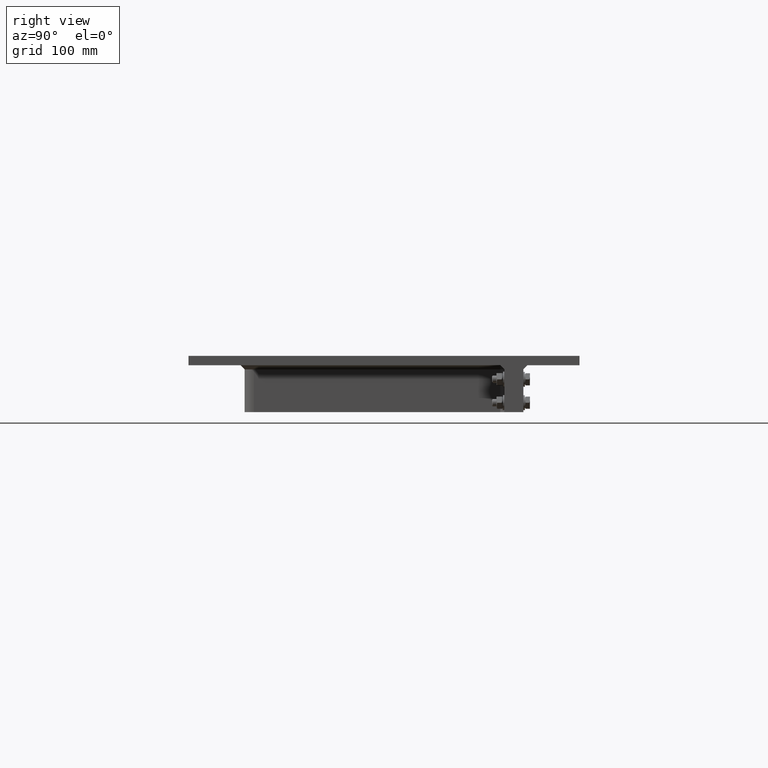
[diagram: clean part render]
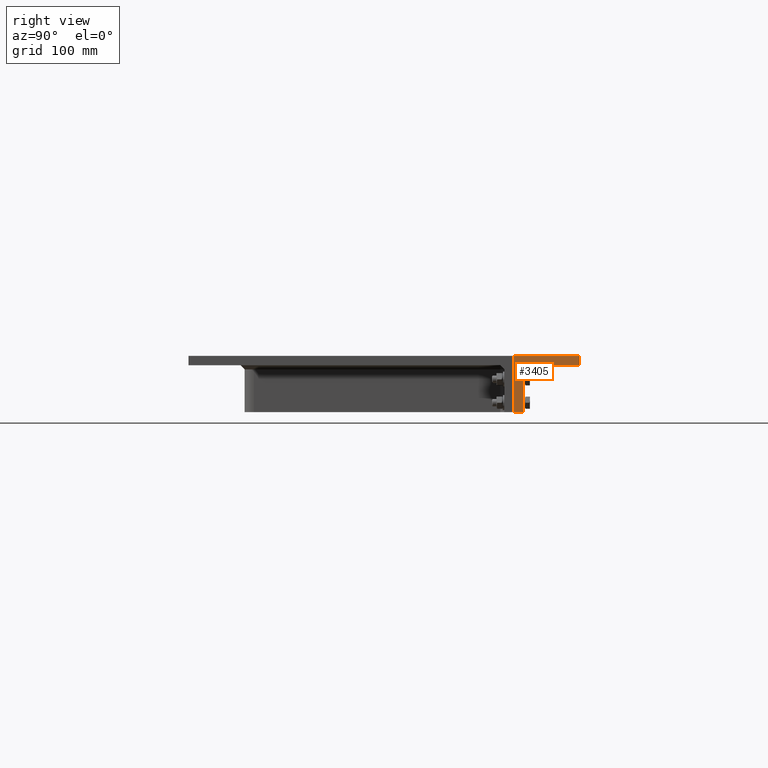
[diagram: same view with one face highlighted and labeled with its STEP entity id]
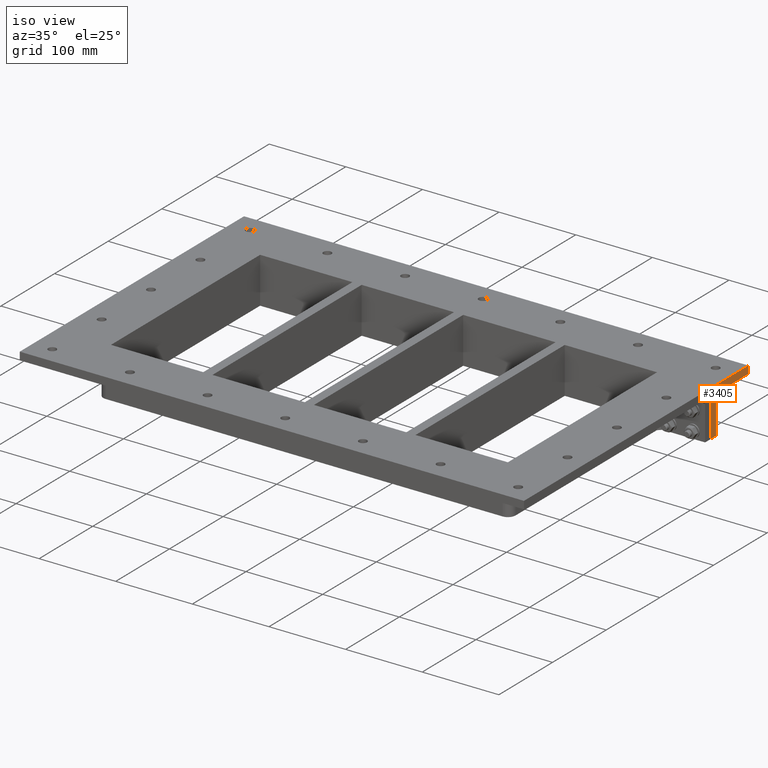
[diagram: same view with one face highlighted and labeled with its STEP entity id]
A machine part, right view. The second image highlights one B-rep face of the part: STEP entity #3405.
A second angle (iso view) of the same face is appended — the face is thin or edge-on in the first view.
In plain terms, the highlighted planar face has unit normal (1, 0, 0).
Its self-contained STEP definition (entity closure, byte-faithful):
#664=FACE_OUTER_BOUND('',#914,.T.);
#914=EDGE_LOOP('',(#2815,#2816,#2817,#2818,#2819,#2820,#2821));
#1180=LINE('',#5485,#1441);
#1184=LINE('',#5493,#1445);
#1203=LINE('',#5586,#1464);
#1216=LINE('',#5640,#1477);
#1217=LINE('',#5643,#1478);
#1218=LINE('',#5645,#1479);
#1219=LINE('',#5646,#1480);
#1441=VECTOR('',#4474,10.);
#1445=VECTOR('',#4480,10.);
#1464=VECTOR('',#4585,10.);
#1477=VECTOR('',#4644,10.);
#1478=VECTOR('',#4647,10.);
#1479=VECTOR('',#4648,10.);
#1480=VECTOR('',#4649,10.);
#1694=VERTEX_POINT('',#5483);
#1695=VERTEX_POINT('',#5484);
#1698=VERTEX_POINT('',#5492);
#1729=VERTEX_POINT('',#5584);
#1747=VERTEX_POINT('',#5638);
#1748=VERTEX_POINT('',#5642);
#1749=VERTEX_POINT('',#5644);
#2051=EDGE_CURVE('',#1694,#1695,#1180,.T.);
#2055=EDGE_CURVE('',#1695,#1698,#1184,.T.);
#2102=EDGE_CURVE('',#1729,#1694,#1203,.T.);
#2129=EDGE_CURVE('',#1747,#1729,#1216,.T.);
#2130=EDGE_CURVE('',#1748,#1747,#1217,.T.);
#2131=EDGE_CURVE('',#1748,#1749,#1218,.T.);
#2132=EDGE_CURVE('',#1698,#1749,#1219,.T.);
#2815=ORIENTED_EDGE('',*,*,#2102,.F.);
#2816=ORIENTED_EDGE('',*,*,#2129,.F.);
#2817=ORIENTED_EDGE('',*,*,#2130,.F.);
#2818=ORIENTED_EDGE('',*,*,#2131,.T.);
#2819=ORIENTED_EDGE('',*,*,#2132,.F.);
#2820=ORIENTED_EDGE('',*,*,#2055,.F.);
#2821=ORIENTED_EDGE('',*,*,#2051,.F.);
#3257=PLANE('',#3903);
#3405=ADVANCED_FACE('',(#664),#3257,.T.);
#3903=AXIS2_PLACEMENT_3D('',#5641,#4645,#4646);
#4474=DIRECTION('',(1.20198465736557E-16,-0.707106781186549,-0.707106781186546));
#4480=DIRECTION('',(0.,0.,-1.));
#4585=DIRECTION('',(1.69986300421077E-16,-1.,0.));
#4644=DIRECTION('',(0.,0.,-1.));
#4645=DIRECTION('center_axis',(1.,1.69986300421077E-16,0.));
#4646=DIRECTION('ref_axis',(1.69986300421077E-16,-1.,0.));
#4647=DIRECTION('',(-1.69986300421077E-16,1.,0.));
#4648=DIRECTION('',(0.,0.,-1.));
#4649=DIRECTION('',(0.,-1.,0.));
#5483=CARTESIAN_POINT('',(329.,153.3,-10.));
#5484=CARTESIAN_POINT('',(329.,149.,-14.3));
#5485=CARTESIAN_POINT('',(329.,168.65,5.34999999999997));
#5492=CARTESIAN_POINT('',(329.,149.,-60.));
#5493=CARTESIAN_POINT('',(329.,149.,0.));
#5584=CARTESIAN_POINT('',(329.,209.,-10.));
#5586=CARTESIAN_POINT('',(329.,-209.,-10.));
#5638=CARTESIAN_POINT('',(329.,209.,0.));
#5640=CARTESIAN_POINT('',(329.,209.,0.));
#5641=CARTESIAN_POINT('Origin',(329.,209.,0.));
#5642=CARTESIAN_POINT('',(329.,139.,0.));
#5643=CARTESIAN_POINT('',(329.,-209.,0.));
#5644=CARTESIAN_POINT('',(329.,139.,-60.));
#5645=CARTESIAN_POINT('',(329.,139.,0.));
#5646=CARTESIAN_POINT('',(329.,149.,-60.));